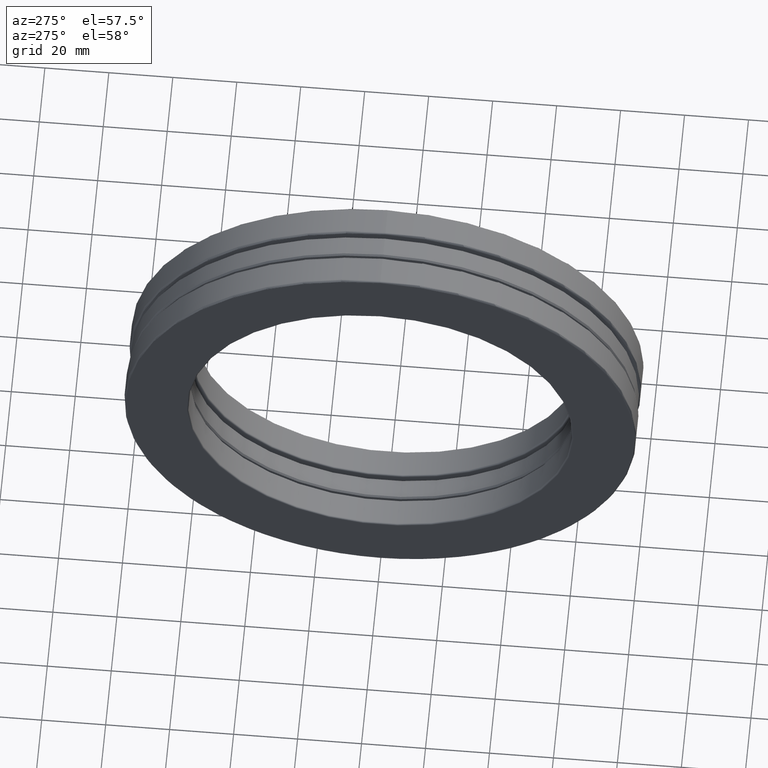
[diagram: clean part render]
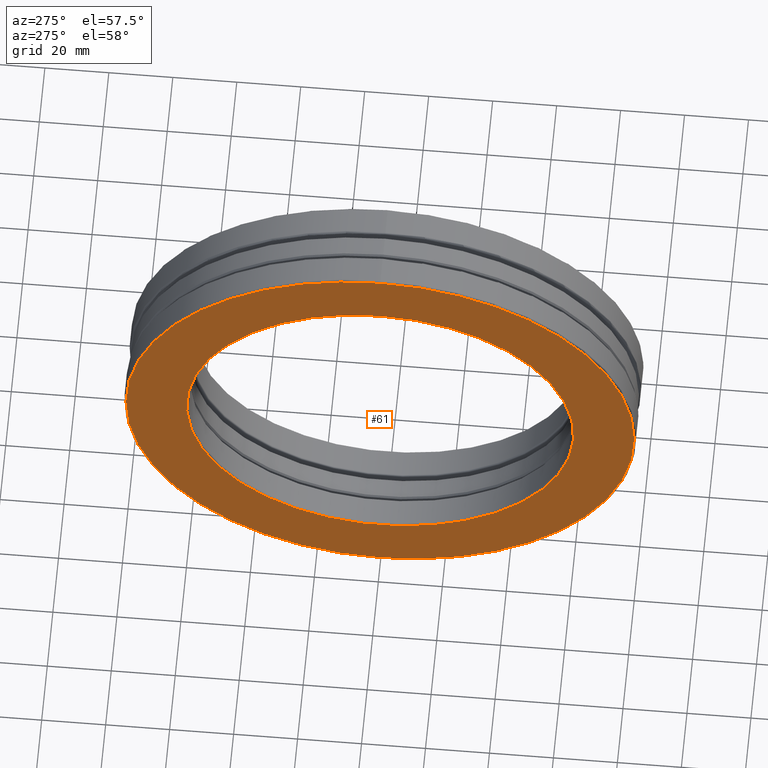
[diagram: same view with one face highlighted and labeled with its STEP entity id]
A machine part, auxiliary view. The second image highlights one B-rep face of the part: STEP entity #61.
In plain terms, the highlighted planar face has unit normal (1, 0, 0).
Its self-contained STEP definition (entity closure, byte-faithful):
#2 = DIRECTION ( 'NONE',  ( 0.0000000000000000000, 0.0000000000000000000, 1.000000000000000000 ) ) ;
#61 = ADVANCED_FACE ( 'NONE', ( #203, #449 ), #530, .F. ) ;
#63 = EDGE_LOOP ( 'NONE', ( #157 ) ) ;
#70 = CIRCLE ( 'NONE', #502, 2.381999999999999700 ) ;
#73 = DIRECTION ( 'NONE',  ( 0.0000000000000000000, 0.0000000000000000000, -1.000000000000000000 ) ) ;
#137 = CIRCLE ( 'NONE', #460, 3.129500000000000600 ) ;
#157 = ORIENTED_EDGE ( 'NONE', *, *, #681, .F. ) ;
#174 = ORIENTED_EDGE ( 'NONE', *, *, #659, .T. ) ;
#203 = FACE_BOUND ( 'NONE', #63, .T. ) ;
#207 = DIRECTION ( 'NONE',  ( -1.000000000000000000, -0.0000000000000000000, -0.0000000000000000000 ) ) ;
#290 = CARTESIAN_POINT ( 'NONE',  ( -0.5314999999999999700, 0.0000000000000000000, 0.0000000000000000000 ) ) ;
#358 = CARTESIAN_POINT ( 'NONE',  ( -0.5314999999999999700, 0.0000000000000000000, 3.129500000000000600 ) ) ;
#449 = FACE_OUTER_BOUND ( 'NONE', #623, .T. ) ;
#460 = AXIS2_PLACEMENT_3D ( 'NONE', #633, #686, #2 ) ;
#502 = AXIS2_PLACEMENT_3D ( 'NONE', #564, #207, #702 ) ;
#530 = PLANE ( 'NONE',  #534 ) ;
#534 = AXIS2_PLACEMENT_3D ( 'NONE', #290, #646, #73 ) ;
#564 = CARTESIAN_POINT ( 'NONE',  ( -0.5314999999999999700, 0.0000000000000000000, 0.0000000000000000000 ) ) ;
#608 = VERTEX_POINT ( 'NONE', #358 ) ;
#623 = EDGE_LOOP ( 'NONE', ( #174 ) ) ;
#633 = CARTESIAN_POINT ( 'NONE',  ( -0.5314999999999999700, 0.0000000000000000000, 0.0000000000000000000 ) ) ;
#646 = DIRECTION ( 'NONE',  ( 1.000000000000000000, 0.0000000000000000000, 0.0000000000000000000 ) ) ;
#659 = EDGE_CURVE ( 'NONE', #608, #608, #137, .T. ) ;
#681 = EDGE_CURVE ( 'NONE', #739, #739, #70, .T. ) ;
#686 = DIRECTION ( 'NONE',  ( -1.000000000000000000, -0.0000000000000000000, -0.0000000000000000000 ) ) ;
#702 = DIRECTION ( 'NONE',  ( 0.0000000000000000000, 0.0000000000000000000, 1.000000000000000000 ) ) ;
#720 = CARTESIAN_POINT ( 'NONE',  ( -0.5314999999999999700, 0.0000000000000000000, 2.381999999999999700 ) ) ;
#739 = VERTEX_POINT ( 'NONE', #720 ) ;